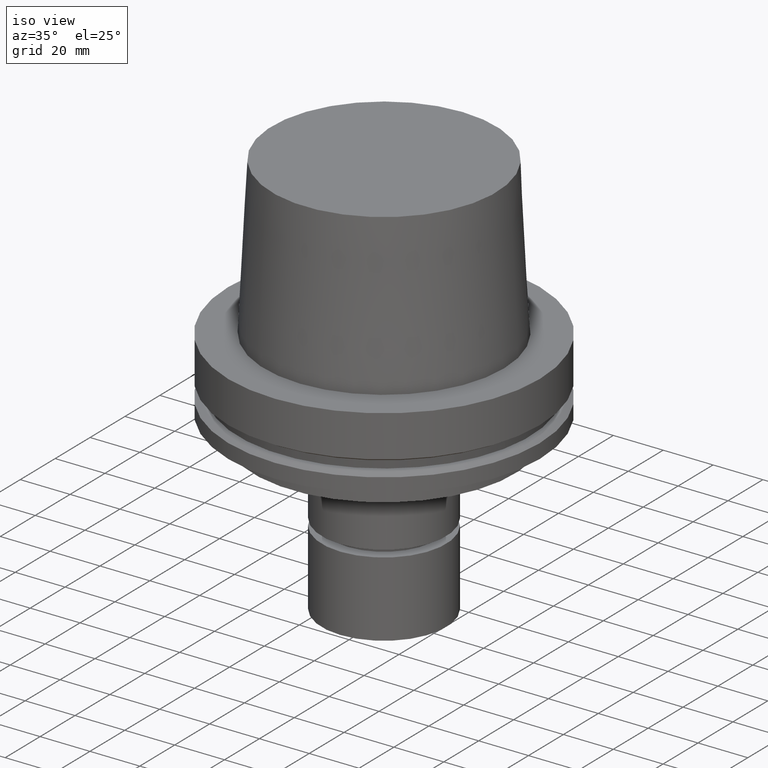
[diagram: clean part render]
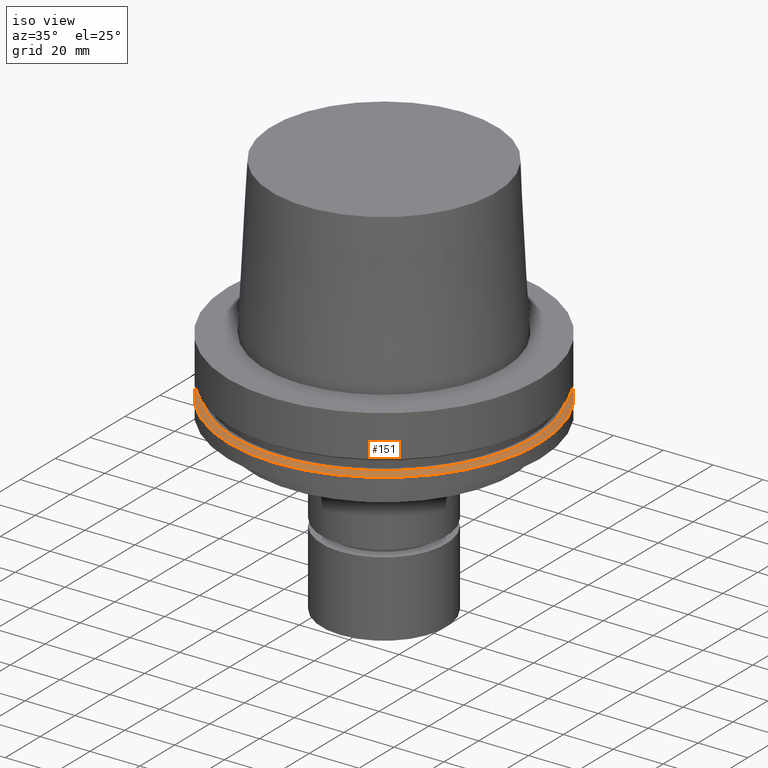
[diagram: same view with one face highlighted and labeled with its STEP entity id]
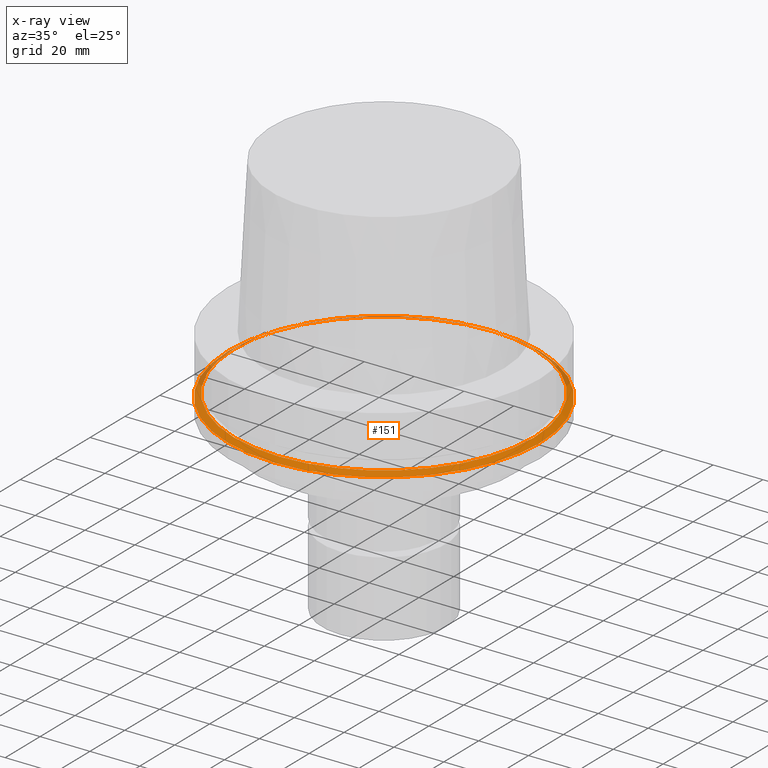
[diagram: x-ray of the same camera — body ghosted, the highlighted face saturated]
A machine part, iso view. The second image highlights one B-rep face of the part: STEP entity #151.
The next image is the same camera in x-ray: the body ghosted, the highlighted face saturated — about 12% of this face is hidden behind the body in this view.
In plain terms, the highlighted conical surface has half-angle 60 deg.
Its self-contained STEP definition (entity closure, byte-faithful):
#101=EDGE_CURVE('Unnamed[1]',#250,#250,#251,.T.);
#151=ADVANCED_FACE('Unnamed[1]',(#327,#328),#329,.T.);
#194=EDGE_CURVE('Unnamed[1]',#396,#396,#397,.T.);
#250=VERTEX_POINT('',#456);
#251=CIRCLE('',#457,60.122595264194);
#327=FACE_BOUND('',#551,.T.);
#328=FACE_BOUND('',#552,.T.);
#329=CONICAL_SURFACE('',#553,61.311297632097,1.04719755119646);
#396=VERTEX_POINT('',#638);
#397=CIRCLE('',#639,62.5);
#456=CARTESIAN_POINT('',(1.33945743656747E-015,60.122595264194,-21.8750000000009));
#457=AXIS2_PLACEMENT_3D('',#681,#682,#683);
#551=EDGE_LOOP('',(#771));
#552=EDGE_LOOP('',(#772));
#553=AXIS2_PLACEMENT_3D('',#773,#774,#775);
#638=CARTESIAN_POINT('',(1.42350465640827E-015,62.5,-23.2475952641916));
#639=AXIS2_PLACEMENT_3D('',#848,#849,#850);
#681=CARTESIAN_POINT('',(1.33945743656747E-015,-3.66782497610122E-014,-21.8750000000008));
#682=DIRECTION('',(6.12323399573677E-017,-1.01046214935359E-015,-1.0));
#683=DIRECTION('',(5.70458091124989E-032,1.0,-1.01046214935359E-015));
#771=ORIENTED_EDGE('',*,*,#194,.F.);
#772=ORIENTED_EDGE('',*,*,#101,.T.);
#773=CARTESIAN_POINT('',(1.38148104648787E-015,-3.73717275414355E-014,-22.5612976320962));
#774=DIRECTION('',(6.12323399573677E-017,-1.01046214935355E-015,-1.0));
#775=DIRECTION('',(5.7045809112507E-032,1.0,-1.01046214935355E-015));
#848=CARTESIAN_POINT('',(1.42350465640827E-015,-3.80652053218589E-014,-23.2475952641915));
#849=DIRECTION('',(6.12323399573677E-017,-1.01046214935351E-015,-1.0));
#850=DIRECTION('',(5.70458091124975E-032,1.0,-1.01046214935351E-015));